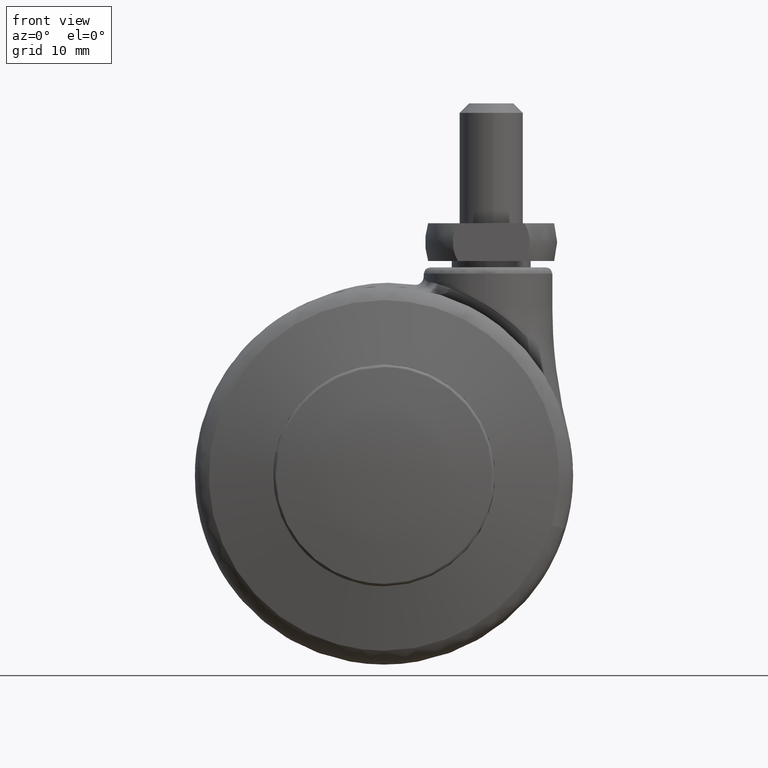
[diagram: clean part render]
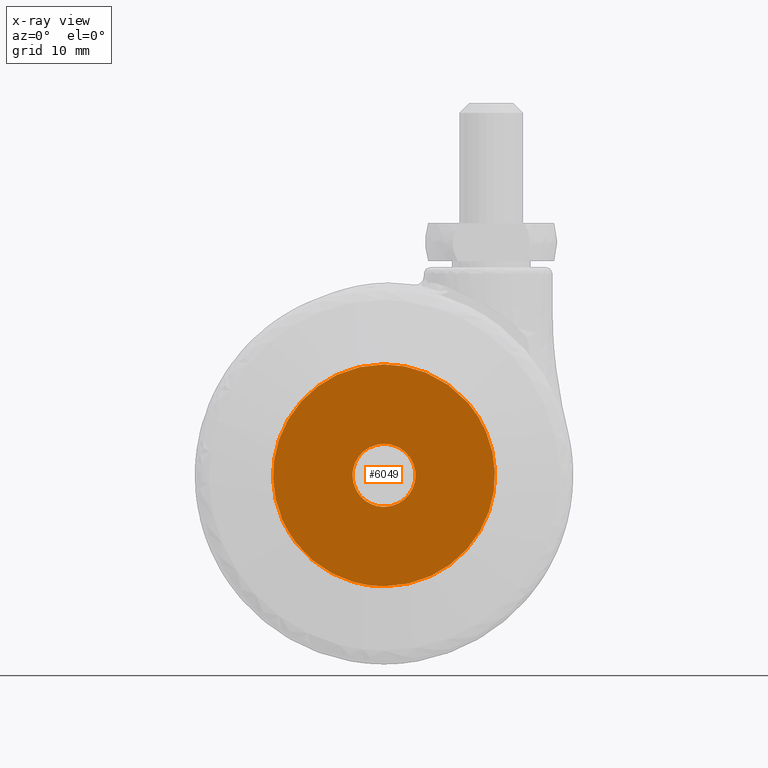
[diagram: x-ray — body ghosted, one internal face saturated and labeled with its STEP entity id]
A machine part, front view, then the same camera in x-ray: the body is ghosted and one INTERNAL B-rep face — a face not visible from any outside direction — is saturated and labeled: STEP entity #6049.
In plain terms, the highlighted face is a freeform B-spline surface patch.
Its self-contained STEP definition (entity closure, byte-faithful):
#3473=CARTESIAN_POINT('',(4.961331069108721,-17.423049182183451,0.620640010550810));
#3474=VERTEX_POINT('',#3473);
#3475=CARTESIAN_POINT('',(0.0,-17.423049182183451,4.999999999999998));
#3476=VERTEX_POINT('',#3475);
#3477=CARTESIAN_POINT('',(4.961331069108722,-17.423049182183448,0.620640010550810));
#3478=CARTESIAN_POINT('',(4.413493000479204,-17.423049182183441,4.999999999999999));
#3479=CARTESIAN_POINT('',(0.0,-17.423049182183451,4.999999999999998));
#3487=(BOUNDED_CURVE()B_SPLINE_CURVE(2,(#3477,#3478,#3479),.UNSPECIFIED.,.F.,.U.)B_SPLINE_CURVE_WITH_KNOTS((3,3),(0.271473928981012,0.500000000000000),.UNSPECIFIED.)CURVE()GEOMETRIC_REPRESENTATION_ITEM()RATIONAL_B_SPLINE_CURVE((0.954005430254709,0.732265053905828,1.0))REPRESENTATION_ITEM(''));
#3488=EDGE_CURVE('',#3474,#3476,#3487,.T.);
#3529=CARTESIAN_POINT('',(-4.999809615318632,-17.423049182183458,-0.043632677746554));
#3530=VERTEX_POINT('',#3529);
#3536=CARTESIAN_POINT('',(0.0,-17.423049182183451,4.999999999999998));
#3537=CARTESIAN_POINT('',(-5.000000000000001,-17.423049182183451,4.999999999999997));
#3538=CARTESIAN_POINT('',(-5.0,-17.423049182183451,-1.653219E-015));
#3539=CARTESIAN_POINT('',(-5.0,-17.423049182183451,-0.021816754358211));
#3540=CARTESIAN_POINT('',(-4.999809615318632,-17.423049182183458,-0.043632677746554));
#3548=(BOUNDED_CURVE()B_SPLINE_CURVE(2,(#3536,#3537,#3538,#3539,#3540),.UNSPECIFIED.,.F.,.U.)B_SPLINE_CURVE_WITH_KNOTS((3,2,3),(0.500000000000000,0.750000000000000,0.751539894352932),.UNSPECIFIED.)CURVE()GEOMETRIC_REPRESENTATION_ITEM()RATIONAL_B_SPLINE_CURVE((1.0,0.707106781186548,1.0,0.998195901545348,0.996414028058876))REPRESENTATION_ITEM(''));
#3549=EDGE_CURVE('',#3476,#3530,#3548,.T.);
#3576=CARTESIAN_POINT('',(0.0,-17.423049182183451,-5.000000000000002));
#3577=VERTEX_POINT('',#3576);
#3578=CARTESIAN_POINT('',(0.0,-17.423049182183451,-5.000000000000002));
#3579=CARTESIAN_POINT('',(5.000000000000001,-17.423049182183451,-5.000000000000002));
#3580=CARTESIAN_POINT('',(5.0,-17.423049182183451,-1.653219E-015));
#3581=CARTESIAN_POINT('',(5.000000000000001,-17.423049182183458,0.311524637820911));
#3582=CARTESIAN_POINT('',(4.961331069108722,-17.423049182183448,0.620640010550810));
#3590=(BOUNDED_CURVE()B_SPLINE_CURVE(2,(#3578,#3579,#3580,#3581,#3582),.UNSPECIFIED.,.F.,.U.)B_SPLINE_CURVE_WITH_KNOTS((3,2,3),(0.0,0.250000000000000,0.271473928981012),.UNSPECIFIED.)CURVE()GEOMETRIC_REPRESENTATION_ITEM()RATIONAL_B_SPLINE_CURVE((1.0,0.707106781186548,1.0,0.974841727280720,0.954005430254709))REPRESENTATION_ITEM(''));
#3591=EDGE_CURVE('',#3577,#3474,#3590,.T.);
#3593=CARTESIAN_POINT('',(-4.999809615318632,-17.423049182183458,-0.043632677746554));
#3594=CARTESIAN_POINT('',(-4.956556052469913,-17.423049182183455,-5.000000000000003));
#3595=CARTESIAN_POINT('',(0.0,-17.423049182183451,-5.000000000000002));
#3603=(BOUNDED_CURVE()B_SPLINE_CURVE(2,(#3593,#3594,#3595),.UNSPECIFIED.,.F.,.U.)B_SPLINE_CURVE_WITH_KNOTS((3,3),(0.751539894352932,1.0),.UNSPECIFIED.)CURVE()GEOMETRIC_REPRESENTATION_ITEM()RATIONAL_B_SPLINE_CURVE((0.996414028058876,0.708910879641199,1.0))REPRESENTATION_ITEM(''));
#3604=EDGE_CURVE('',#3530,#3577,#3603,.T.);
#3676=CARTESIAN_POINT('',(13.327395417798201,-17.423049182183451,11.495239509364190));
#3677=VERTEX_POINT('',#3676);
#3683=CARTESIAN_POINT('',(0.0,-17.423049182183451,17.600000000000001));
#3684=VERTEX_POINT('',#3683);
#3685=CARTESIAN_POINT('',(13.327395417798195,-17.423049182183455,11.495239509364186));
#3686=CARTESIAN_POINT('',(8.061874152221925,-17.423049182183448,17.599999999999998));
#3687=CARTESIAN_POINT('',(0.0,-17.423049182183451,17.600000000000001));
#3695=(BOUNDED_CURVE()B_SPLINE_CURVE(2,(#3685,#3686,#3687),.UNSPECIFIED.,.F.,.U.)B_SPLINE_CURVE_WITH_KNOTS((3,3),(0.363878075139230,0.500000000000000),.UNSPECIFIED.)CURVE()GEOMETRIC_REPRESENTATION_ITEM()RATIONAL_B_SPLINE_CURVE((0.854712752985568,0.840523245105785,1.0))REPRESENTATION_ITEM(''));
#3696=EDGE_CURVE('',#3677,#3684,#3695,.T.);
#3698=CARTESIAN_POINT('',(-13.963019049615260,-17.423049182183451,-10.714200811076910));
#3699=VERTEX_POINT('',#3698);
#3700=CARTESIAN_POINT('',(0.0,-17.423049182183451,17.600000000000001));
#3701=CARTESIAN_POINT('',(-17.600000000000005,-17.423049182183451,17.600000000000005));
#3702=CARTESIAN_POINT('',(-17.600000000000001,-17.423049182183451,-1.653219E-015));
#3703=CARTESIAN_POINT('',(-17.599999999999998,-17.423049182183455,-5.974394478787923));
#3704=CARTESIAN_POINT('',(-13.963019049615266,-17.423049182183451,-10.714200811076910));
#3712=(BOUNDED_CURVE()B_SPLINE_CURVE(2,(#3700,#3701,#3702,#3703,#3704),.UNSPECIFIED.,.F.,.U.)B_SPLINE_CURVE_WITH_KNOTS((3,2,3),(0.500000000000000,0.750000000000000,0.855220503024840),.UNSPECIFIED.)CURVE()GEOMETRIC_REPRESENTATION_ITEM()RATIONAL_B_SPLINE_CURVE((1.0,0.707106781186548,1.0,0.876726512735536,0.857220212187817))REPRESENTATION_ITEM(''));
#3713=EDGE_CURVE('',#3684,#3699,#3712,.T.);
#3823=CARTESIAN_POINT('',(0.0,-17.423049182183451,-17.600000000000001));
#3824=VERTEX_POINT('',#3823);
#3825=CARTESIAN_POINT('',(-13.963019049615266,-17.423049182183451,-10.714200811076910));
#3826=CARTESIAN_POINT('',(-8.679360030114047,-17.423049182183455,-17.600000000000001));
#3827=CARTESIAN_POINT('',(0.0,-17.423049182183451,-17.600000000000001));
#3835=(BOUNDED_CURVE()B_SPLINE_CURVE(2,(#3825,#3826,#3827),.UNSPECIFIED.,.F.,.U.)B_SPLINE_CURVE_WITH_KNOTS((3,3),(0.855220503024840,1.0),.UNSPECIFIED.)CURVE()GEOMETRIC_REPRESENTATION_ITEM()RATIONAL_B_SPLINE_CURVE((0.857220212187817,0.830380268451011,1.0))REPRESENTATION_ITEM(''));
#3836=EDGE_CURVE('',#3699,#3824,#3835,.T.);
#3838=CARTESIAN_POINT('',(0.0,-17.423049182183451,-17.600000000000001));
#3839=CARTESIAN_POINT('',(17.600000000000005,-17.423049182183451,-17.600000000000005));
#3840=CARTESIAN_POINT('',(17.600000000000001,-17.423049182183451,-1.653219E-015));
#3841=CARTESIAN_POINT('',(17.600000000000001,-17.423049182183448,6.541650618544517));
#3842=CARTESIAN_POINT('',(13.327395417798195,-17.423049182183455,11.495239509364186));
#3850=(BOUNDED_CURVE()B_SPLINE_CURVE(2,(#3838,#3839,#3840,#3841,#3842),.UNSPECIFIED.,.F.,.U.)B_SPLINE_CURVE_WITH_KNOTS((3,2,3),(0.0,0.250000000000000,0.363878075139230),.UNSPECIFIED.)CURVE()GEOMETRIC_REPRESENTATION_ITEM()RATIONAL_B_SPLINE_CURVE((1.0,0.707106781186548,1.0,0.866583536080763,0.854712752985568))REPRESENTATION_ITEM(''));
#3851=EDGE_CURVE('',#3824,#3677,#3850,.T.);
#6032=CARTESIAN_POINT('',(-19.356338802542169,-17.423049182183451,-19.358240592640389));
#6033=CARTESIAN_POINT('',(-19.356338802542169,-17.423049182183451,19.358240907352929));
#6034=CARTESIAN_POINT('',(19.351445966925109,-17.423049182183451,-19.358240592640399));
#6035=CARTESIAN_POINT('',(19.351445966925109,-17.423049182183451,19.358240907352929));
#6036=B_SPLINE_SURFACE_WITH_KNOTS('',1,1,((#6032,#6034),(#6033,#6035)),.UNSPECIFIED.,.F.,.F.,.U.,(2,2),(2,2),(0.0,38.716481499993321),(0.0,38.707784769467281),.UNSPECIFIED.);
#6037=ORIENTED_EDGE('',*,*,#3836,.F.);
#6038=ORIENTED_EDGE('',*,*,#3713,.F.);
#6039=ORIENTED_EDGE('',*,*,#3696,.F.);
#6040=ORIENTED_EDGE('',*,*,#3851,.F.);
#6041=EDGE_LOOP('',(#6037,#6038,#6039,#6040));
#6042=FACE_OUTER_BOUND('',#6041,.T.);
#6043=ORIENTED_EDGE('',*,*,#3549,.T.);
#6044=ORIENTED_EDGE('',*,*,#3604,.T.);
#6045=ORIENTED_EDGE('',*,*,#3591,.T.);
#6046=ORIENTED_EDGE('',*,*,#3488,.T.);
#6047=EDGE_LOOP('',(#6043,#6044,#6045,#6046));
#6048=FACE_BOUND('',#6047,.T.);
#6049=ADVANCED_FACE('',(#6042,#6048),#6036,.T.);